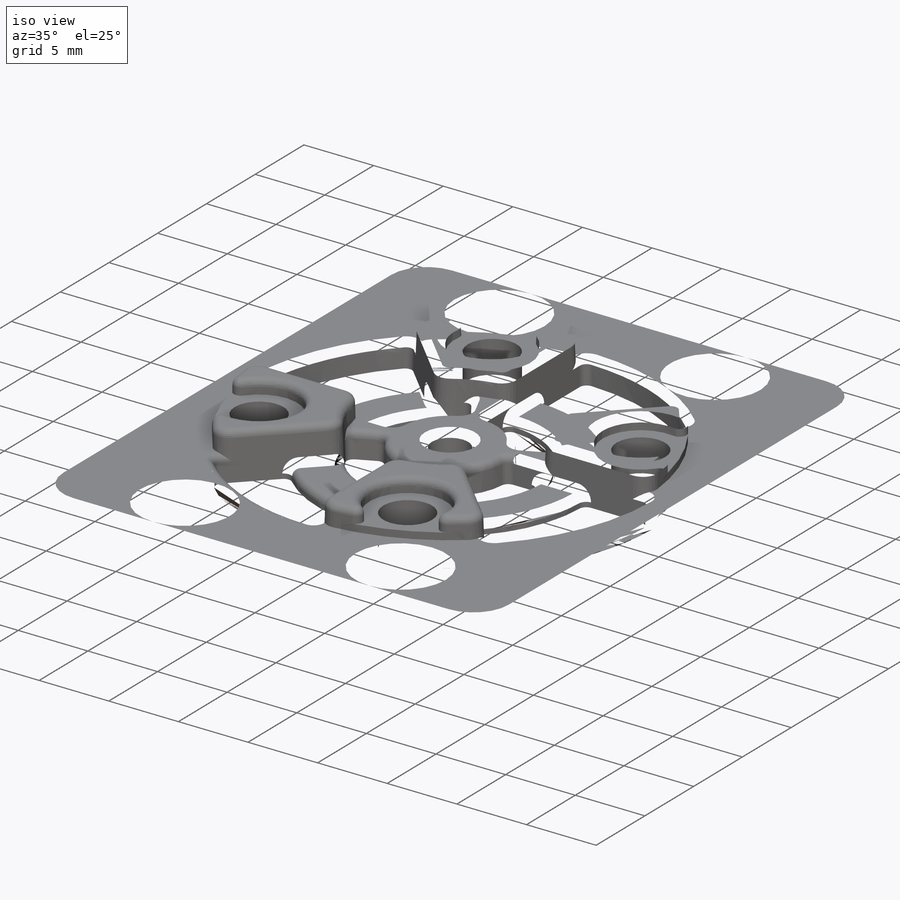
[diagram: iso view]
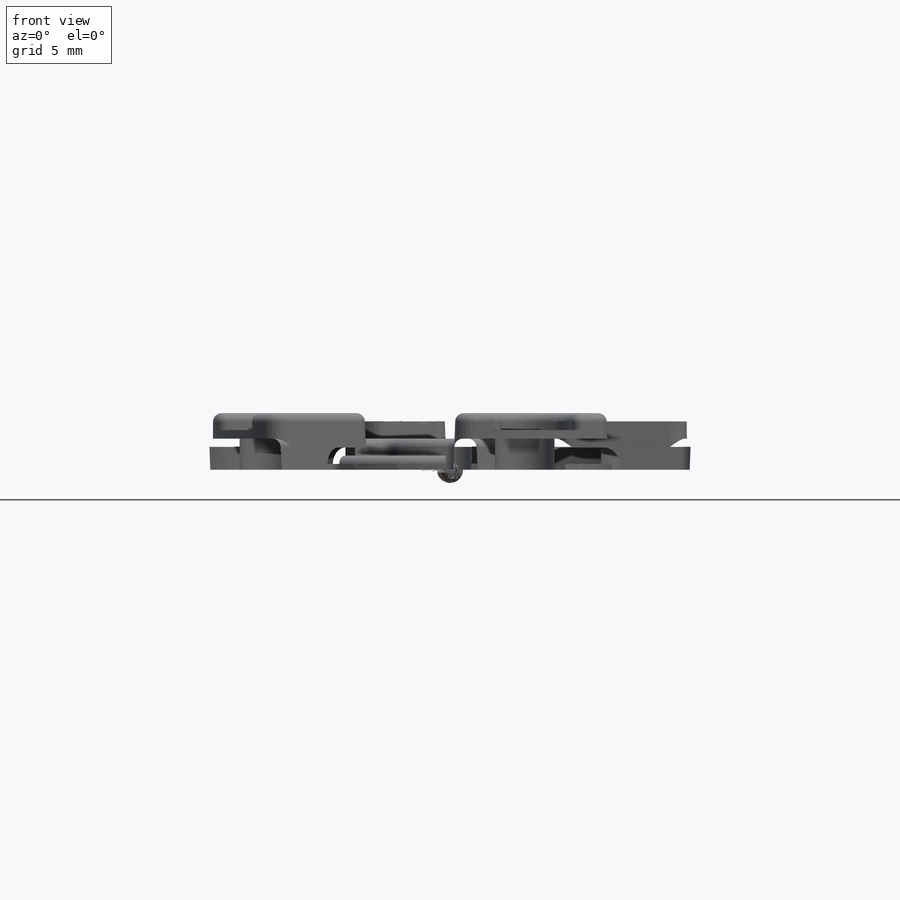
[diagram: front view]
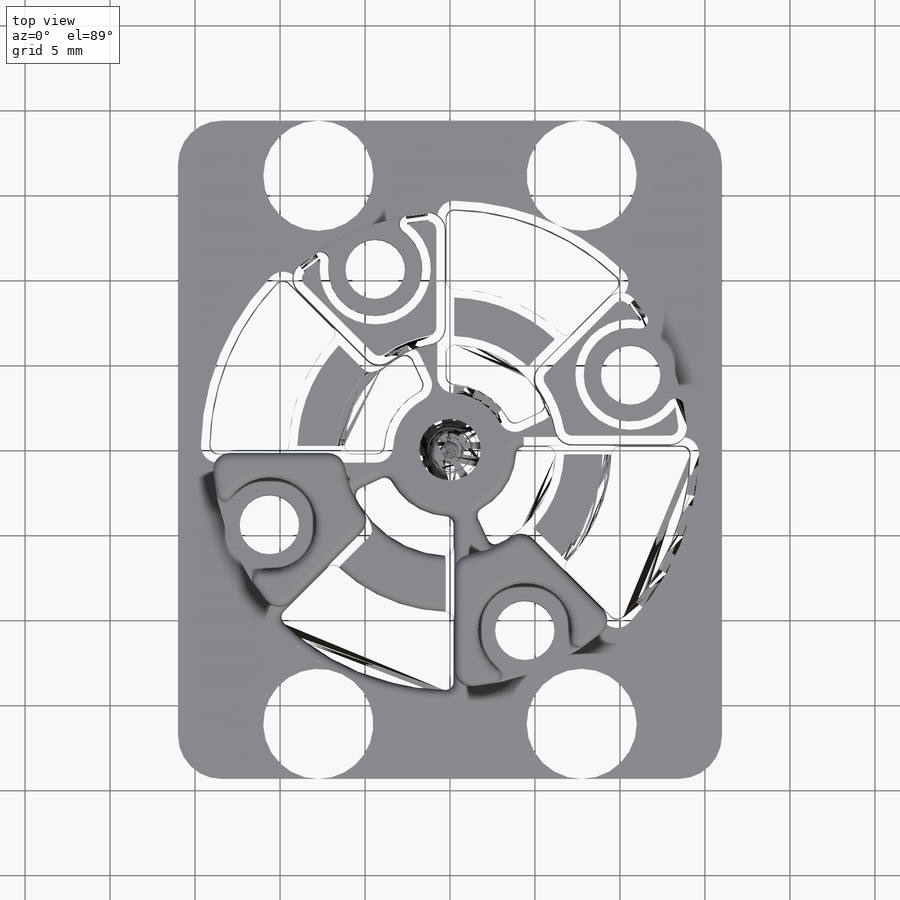
[diagram: top view]
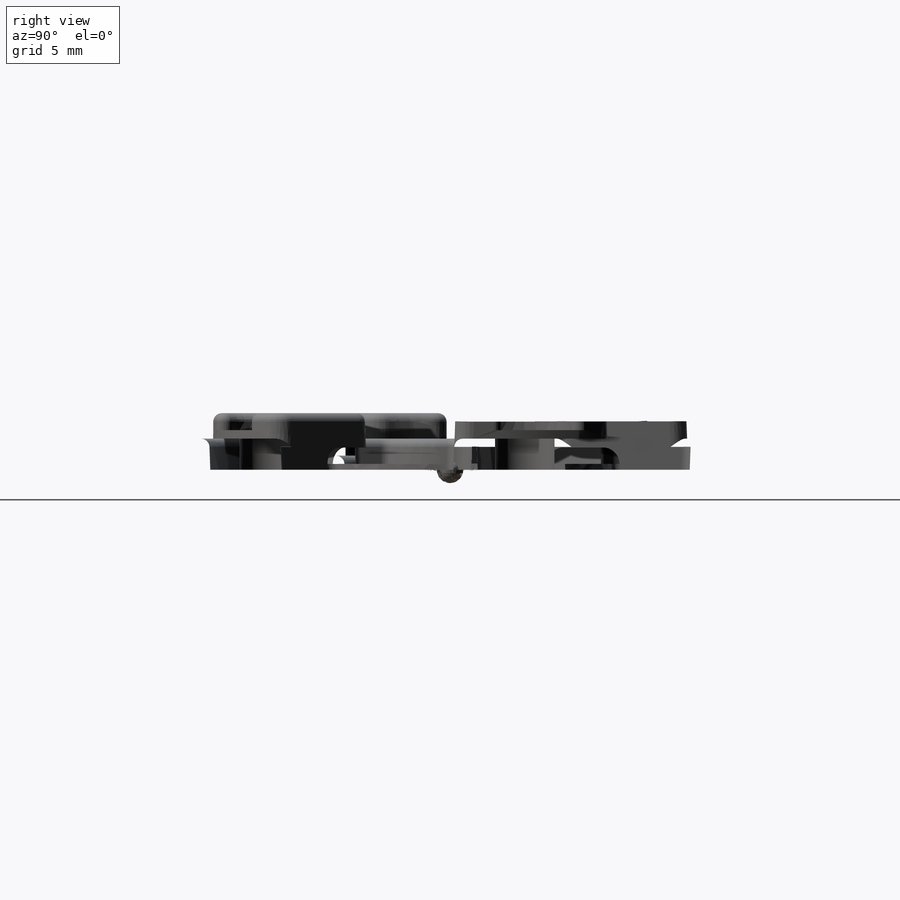
[diagram: right view]
SOLIDWORKS PART (.sldprt)
format: sldprt  version: not decoded by parser v0  size: 2,131,968 bytes
history: native  units: mm
features: sketch x17, fillet x8, extrude x7, cut_extrude x7, pattern_circular x3, mirror x2, material x1, plane x1, hole x1 (+12 scaffold rows collapsed)
feature tree (59):
  scaffold x12  (default folders/planes/origin — collapsed)
  material  "Melamine resin"
  sketch  "Sketch1"  dims[D1=32.0mm D2=33.02mm]
  extrude  "Boss-Extrude1"  Depth=1.83mm
  sketch  "Sketch4"  dims[c1.D4=9.5mm c1.D5=14.1mm c1.D8=3.9mm c1.D9=6.2mm c1.D1=~5.281419mm c2.D1=45.0deg c2.D2=0.2mm c2.D3=~11.569299mm c3.D3=45.0deg c3.D1=0.2mm c3.D6=~11.569299mm c4.D6=65.0deg c4.D7=0.2mm]
  cut_extrude  "Cut-Extrude2"  Depth=18mm
  sketch  "Sketch5"  dims[D2=14.0mm D1=0.2mm]
  extrude  "Boss-Extrude3"  Depth=1.5mm
  sketch  "Sketch6"  dims[c1.D1=3.5mm c1.D2=11.5mm c1.D3=~9.414571mm c2.D3=22.5deg c3.D3=~10.624615mm c4.D3=22.5deg c4.D4=11.5mm c4.D2=11.5mm]
  cut_extrude  "Cut-Extrude3"  Depth=2.5mm
  sketch  "Sketch7"  dims[D1=4.5mm]
  cut_extrude  "Cut-Extrude4"  Depth=2.5mm
  sketch  "Sketch8"  dims[D1=5.5mm]
  cut_extrude  "Cut-Extrude5"  Depth=1mm
  sketch  "Sketch9"
  cut_extrude  "Cut-Extrude6"  Depth=1mm
  sketch  "Sketch11"  dims[D1=2.5mm]
  plane  "Plane1"  Offset=2mm
  cut_extrude  "Cut-Extrude9"  [1 undecoded]
  pattern_circular  "CirPattern1"  Count=4 Angle=90deg
  fillet  "Fillet3"  Radius=1mm
  fillet  "Fillet4"  Radius=0.5mm
  fillet  "Fillet5"  Radius=0.5mm
  fillet  "Fillet6"  Radius=0.5mm
  sketch  "Sketch12"  dims[c1.D1=2.794mm c1.D4=2.794mm c1.D6=6.477mm c1.D2=14.9352mm c1.D3=8.6614mm c2.D4=1.5875mm c2.D5=14.25mm c2.D2=12.7mm]
  extrude  "Boss-Extrude4"  [1 undecoded]
  sketch  "Sketch18"  dims[c1.D3=28.448mm c1.D4=28.448mm c1.D1=28.448mm c1.D2=~39.38203mm c1.D7=0.254mm c1.D8=1.27mm c1.D9=1.27mm c2.D7=1.27mm c2.D1=2.54mm c2.D2=4.7625mm c3.D1=0.254mm c3.D5=5.842mm c3.D6=~23.261681mm c4.D6=45.0deg c4.D2=~16.85798mm c4.D4=0.254mm]
  extrude  "Boss-Extrude6"  Depth=1.0033mm
  sketch  "Sketch13"
  hole  "CSK for #4 Flat Head Socket Cap Screw2"  Diameter=2.9464mm Depth=2.8333mm
  sketch  "Sketch15"
  sketch  "Sketch14"  dims[hole-wizard template sketch: 55 standard entries collapsed; hole parameters kept: c17.Thru Hole Depth=2.8333mm c17.Near C'Sink Dia.=6.477mm c17.D4=~3.666174mm c17.Near C'Sink Angle=82.0deg]
  sketch  "Sketch21"  dims[D1=0.381mm]
  extrude  "Boss-Extrude7"  Depth=0.5mm
  mirror  "Mirror1"
  mirror  "Mirror2"
  sketch  "Sketch19"  dims[D1=1.5748mm D2=14.732mm D3=4.826mm]
  cut_extrude  "Cut-Extrude12"  Depth=1.016mm
  pattern_circular  "CirPattern3"  Count=2 Angle=360deg
  fillet  "Fillet8"  Radius=2.54mm
  fillet  "Fillet9"  Radius=0.635mm
  fillet  "Fillet10"  Radius=0.3175mm
  sketch  "Sketch22"  dims[D1=0.0mm]
  extrude  "Magnet Back Cut Fill"  [1 undecoded]
  pattern_circular  "CirPattern4"  Count=4 Angle=360deg
  sketch  "Sketch23"  dims[D1=16.0mm]
  extrude  "Boss-Extrude8"  [1 undecoded]
  fillet  "Fillet11"  Radius=2.54mm
decode coverage: 36 of 45 modeling features carry decoded parameters
note: ~ marks probable driven/reference dimensions
note: 4 parameter values undecoded
summary: no parameter record found for 4 features
note: suppression state not decoded; provenance and decode notes live in map.json
